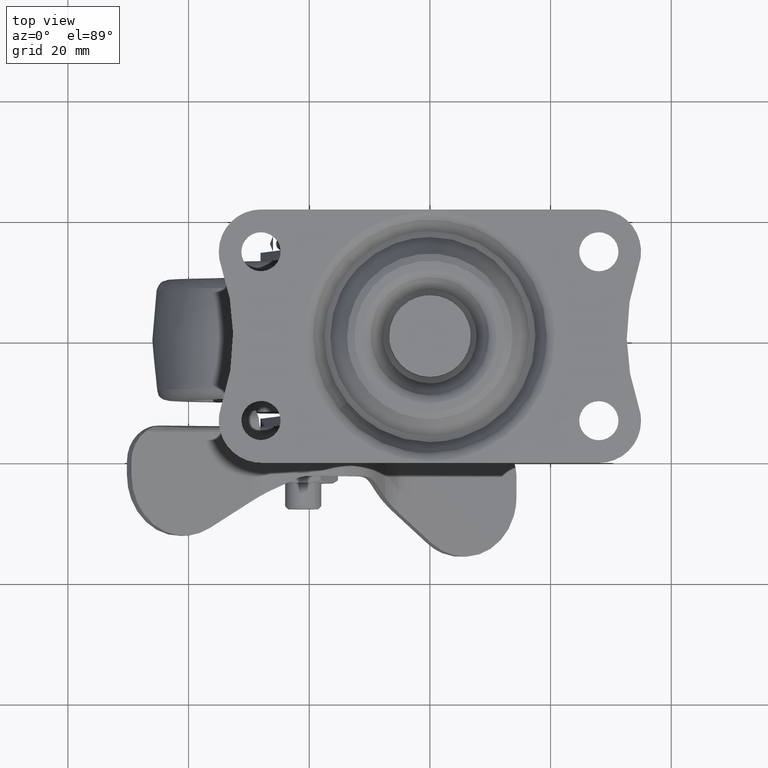
[diagram: clean part render]
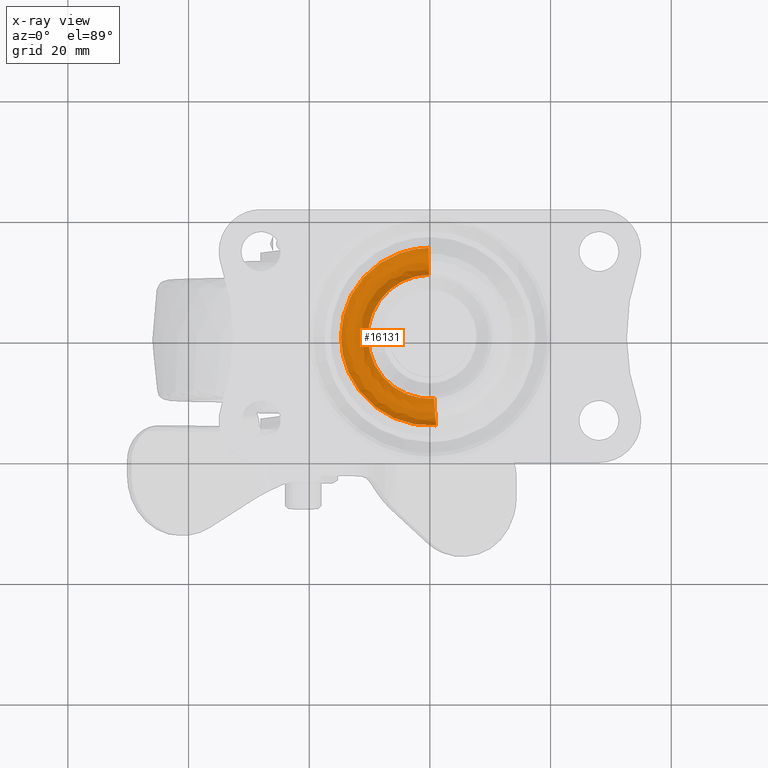
[diagram: x-ray — body ghosted, one internal face saturated and labeled with its STEP entity id]
A machine part, top view, then the same camera in x-ray: the body is ghosted and one INTERNAL B-rep face — a face not visible from any outside direction — is saturated and labeled: STEP entity #16131.
In plain terms, the highlighted face is a freeform B-spline surface patch.
Its self-contained STEP definition (entity closure, byte-faithful):
#15975=CARTESIAN_POINT('',(1.254466346812317,-14.787687954244289,-4.652776239736873));
#15976=CARTESIAN_POINT('',(1.144314758234576,-14.795387920818039,-4.652776239736872));
#15977=CARTESIAN_POINT('',(0.611126244214008,-14.832659591508182,-4.652776239736873));
#15978=CARTESIAN_POINT('',(0.186469575715161,-14.837996265502614,-4.652776239736872));
#15979=CARTESIAN_POINT('',(-14.651526689787447,-15.024465841217767,-4.652776239736872));
#15980=CARTESIAN_POINT('',(-14.837996265502614,-0.186469575715162,-4.652776239736872));
#15981=CARTESIAN_POINT('',(-15.024465841217767,14.651526689787447,-4.652776239736872));
#15982=CARTESIAN_POINT('',(-0.079756804454429,14.839337328327018,-4.652776239736872));
#15983=CARTESIAN_POINT('',(0.026322067867619,14.840670424923106,-4.652776239736872));
#15984=CARTESIAN_POINT('',(1.204622691708250,-14.200129411880141,-6.299998449999986));
#15985=CARTESIAN_POINT('',(1.098847751259958,-14.207523436027305,-6.299998449999987));
#15986=CARTESIAN_POINT('',(0.586844392557286,-14.243314193097278,-6.299998449999985));
#15987=CARTESIAN_POINT('',(0.179060588425095,-14.248438825263197,-6.299998449999985));
#15988=CARTESIAN_POINT('',(-14.069378236838102,-14.427499413688293,-6.299998449999985));
#15989=CARTESIAN_POINT('',(-14.248438825263197,-0.179060588425096,-6.299998449999985));
#15990=CARTESIAN_POINT('',(-14.427499413688293,14.069378236838102,-6.299998449999985));
#15991=CARTESIAN_POINT('',(-0.076587830919562,14.249726603698546,-6.299998449999987));
#15992=CARTESIAN_POINT('',(0.025276214325391,14.251006732427351,-6.299998449999986));
#15993=CARTESIAN_POINT('',(1.056718910170037,-12.456635077259264,-6.299998449999986));
#15994=CARTESIAN_POINT('',(0.963931035125682,-12.463121261848302,-6.299998449999986));
#15995=CARTESIAN_POINT('',(0.514791536977557,-12.494517623601629,-6.299998449999984));
#15996=CARTESIAN_POINT('',(0.157075498541910,-12.499013052547699,-6.299998449999984));
#15997=CARTESIAN_POINT('',(-12.341937554005787,-12.656088551089608,-6.299998449999984));
#15998=CARTESIAN_POINT('',(-12.499013052547699,-0.157075498541911,-6.299998449999984));
#15999=CARTESIAN_POINT('',(-12.656088551089608,12.341937554005787,-6.299998449999984));
#16000=CARTESIAN_POINT('',(-0.067184363849928,12.500142717324985,-6.299998449999986));
#16001=CARTESIAN_POINT('',(0.022172796377657,12.501265671628021,-6.299998449999987));
#16002=CARTESIAN_POINT('',(0.908815101572299,-10.713140423659885,-6.299998449999985));
#16003=CARTESIAN_POINT('',(0.829014294307911,-10.718718768524703,-6.299998449999986));
#16004=CARTESIAN_POINT('',(0.442738668215502,-10.745720734157418,-6.299998449999984));
#16005=CARTESIAN_POINT('',(0.135090404636476,-10.749586959768518,-6.299998449999984));
#16006=CARTESIAN_POINT('',(-10.614496555132041,-10.884677364404993,-6.299998449999986));
#16007=CARTESIAN_POINT('',(-10.749586959768518,-0.135090404636476,-6.299998449999984));
#16008=CARTESIAN_POINT('',(-10.884677364404995,10.614496555132041,-6.299998449999986));
#16009=CARTESIAN_POINT('',(-0.057780895059896,10.750558510858809,-6.299998449999984));
#16010=CARTESIAN_POINT('',(0.019069377862141,10.751524290707311,-6.299998449999984));
#16011=CARTESIAN_POINT('',(0.858971461335551,-10.125582056552167,-4.652775836811488));
#16012=CARTESIAN_POINT('',(0.783547300895151,-10.130854459081652,-4.652775836811488));
#16013=CARTESIAN_POINT('',(0.418456823801548,-10.156375511535927,-4.652775836811485));
#16014=CARTESIAN_POINT('',(0.127681419556355,-10.160029695381764,-4.652775836811486));
#16015=CARTESIAN_POINT('',(-10.032348275825409,-10.287711114938121,-4.652775836811485));
#16016=CARTESIAN_POINT('',(-10.160029695381764,-0.127681419556356,-4.652775836811486));
#16017=CARTESIAN_POINT('',(-10.287711114938121,10.032348275825408,-4.652775836811485));
#16018=CARTESIAN_POINT('',(-0.054611922470268,10.160947962098884,-4.652775836811486));
#16019=CARTESIAN_POINT('',(0.018023524631869,10.161860774095915,-4.652775836811486));
#16027=(BOUNDED_SURFACE()B_SPLINE_SURFACE(2,2,((#15975,#15984,#15993,#16002,#16011),(#15976,#15985,#15994,#16003,#16012),(#15977,#15986,#15995,#16004,#16013),(#15978,#15987,#15996,#16005,#16014),(#15979,#15988,#15997,#16006,#16015),(#15980,#15989,#15998,#16007,#16016),(#15981,#15990,#15999,#16008,#16017),(#15982,#15991,#16000,#16009,#16018),(#15983,#15992,#16001,#16010,#16019)),.UNSPECIFIED.,.F.,.F.,.U.)B_SPLINE_SURFACE_WITH_KNOTS((3,1,2,2,1,3),(3,2,3),(0.0,0.250781733737984,1.234234331858554,25.820572732232261,50.406911132605977,50.657721608783667),(0.0,3.147990039660571,6.295980542036234),.UNSPECIFIED.)GEOMETRIC_REPRESENTATION_ITEM()RATIONAL_B_SPLINE_SURFACE(((0.938528616179329,0.780925577206086,0.972008777248647,0.780925549119250,0.938528662510680),(0.941182467316013,0.783133778634372,0.974757299301038,0.783133750468115,0.941182513778375),(0.954243522982692,0.794001547884652,0.988284282420452,0.794001519327524,0.954243570089824),(0.965555700881543,0.803414120823643,1.0,0.803414091927982,0.965555748547112),(0.682750983706669,0.568099572935426,0.707106781186548,0.568099552503108,0.682751017411316),(0.965555700881543,0.803414120823643,1.0,0.803414091927982,0.965555748547112),(0.682750983706669,0.568099572935426,0.707106781186548,0.568099552503108,0.682751017411316),(0.968440652053404,0.805814614660760,1.002987866126446,0.805814585678763,0.968440699861391),(0.971325603225265,0.808215108497878,1.005975732252892,0.808215079429544,0.971325651175670)))REPRESENTATION_ITEM('')SURFACE());
#16028=CARTESIAN_POINT('',(-10.264692522078940,0.0,-4.899998799999991));
#16029=VERTEX_POINT('',#16028);
#16030=CARTESIAN_POINT('',(0.715790249355298,-10.239702987608419,-4.899994822422636));
#16031=VERTEX_POINT('',#16030);
#16032=CARTESIAN_POINT('',(-10.264692522078940,0.0,-4.899998799999991));
#16033=CARTESIAN_POINT('',(-10.264764459553311,-0.701668213624318,-4.899998673236914));
#16034=CARTESIAN_POINT('',(-10.111309381801920,-2.192724466481469,-4.899998374101704));
#16035=CARTESIAN_POINT('',(-9.443867505465473,-4.203890323261155,-4.899997881408207));
#16036=CARTESIAN_POINT('',(-8.361529806864683,-6.070352202730941,-4.899997334473521));
#16037=CARTESIAN_POINT('',(-7.104764043567214,-7.491220087471522,-4.899996834252947));
#16038=CARTESIAN_POINT('',(-5.611510191380226,-8.651971861778069,-4.899996335210314));
#16039=CARTESIAN_POINT('',(-4.293541924561294,-9.362008436023400,-4.899995951564512));
#16040=CARTESIAN_POINT('',(-2.810245907119176,-9.908794888345817,-4.899995565381968));
#16041=CARTESIAN_POINT('',(-1.217634604837215,-10.251898100725921,-4.899995194821301));
#16042=CARTESIAN_POINT('',(0.059583548785452,-10.285648584790360,-4.899994941261431));
#16043=CARTESIAN_POINT('',(0.715790249355298,-10.239702987608419,-4.899994822422636));
#16044=B_SPLINE_CURVE_WITH_KNOTS('',3,(#16032,#16033,#16034,#16035,#16036,#16037,#16038,#16039,#16040,#16041,#16042,#16043),.UNSPECIFIED.,.F.,.U.,(4,1,1,1,1,1,1,1,1,4),(0.000000077285470,2.105020683642975,4.473189182731669,6.315105143934741,8.551658459804285,10.130415157014911,11.972340766568649,13.024868409543011,14.866787317854390,16.840227094994209),.UNSPECIFIED.);
#16045=EDGE_CURVE('',#16029,#16031,#16044,.T.);
#16046=ORIENTED_EDGE('',*,*,#16045,.F.);
#16047=CARTESIAN_POINT('',(-0.128986511137416,10.263880135452430,-4.899994822370571));
#16048=VERTEX_POINT('',#16047);
#16049=CARTESIAN_POINT('',(-0.128986511137416,10.263880135452430,-4.899994822370571));
#16050=CARTESIAN_POINT('',(-1.170278961880329,10.251246656815670,-4.899995026602829));
#16051=CARTESIAN_POINT('',(-2.957475900534001,9.953389727071588,-4.899995431318069));
#16052=CARTESIAN_POINT('',(-5.132005703718651,8.965182780972979,-4.899996046529076));
#16053=CARTESIAN_POINT('',(-6.491670820165065,7.991807605723735,-4.899996500947593));
#16054=CARTESIAN_POINT('',(-7.584857034146079,6.962841358035505,-4.899996914642123));
#16055=CARTESIAN_POINT('',(-8.638616285918880,5.664471350138951,-4.899997373555547));
#16056=CARTESIAN_POINT('',(-9.579888184655799,3.886908578197405,-4.899997904693205));
#16057=CARTESIAN_POINT('',(-10.146444517209311,1.916011221338229,-4.899998401161585));
#16058=CARTESIAN_POINT('',(-10.264751998351560,0.624786978741892,-4.899998677426306));
#16059=CARTESIAN_POINT('',(-10.264692522078940,0.0,-4.899998799999991));
#16060=B_SPLINE_CURVE_WITH_KNOTS('',3,(#16049,#16050,#16051,#16052,#16053,#16054,#16055,#16056,#16057,#16058,#16059),.UNSPECIFIED.,.F.,.U.,(4,1,1,1,1,1,1,1,4),(0.000000090298995,3.123983173237352,5.373288687253954,7.122718820225469,8.122357970410032,9.871791818538391,12.121098220110831,14.120481603271219,15.994848920476990),.UNSPECIFIED.);
#16061=EDGE_CURVE('',#16048,#16029,#16060,.T.);
#16062=ORIENTED_EDGE('',*,*,#16061,.F.);
#16063=CARTESIAN_POINT('',(-0.185139326916579,14.734146031416220,-4.899995346601386));
#16064=VERTEX_POINT('',#16063);
#16065=CARTESIAN_POINT('',(-0.185139326916579,14.734146031416220,-4.899995346601386));
#16066=CARTESIAN_POINT('',(-0.183396109134275,14.595370319236920,-5.186808996460331));
#16067=CARTESIAN_POINT('',(-0.179052075354861,14.249546413806399,-5.646468693104300));
#16068=CARTESIAN_POINT('',(-0.170470411021972,13.566369250483801,-6.099800437616441));
#16069=CARTESIAN_POINT('',(-0.162360263678256,12.920729052779890,-6.291366233176120));
#16070=CARTESIAN_POINT('',(-0.154683551499559,12.309594167212280,-6.312687587570083));
#16071=CARTESIAN_POINT('',(-0.147483862640503,11.736434600378130,-6.206295125393909));
#16072=CARTESIAN_POINT('',(-0.139806222721994,11.125225858415840,-5.927251752629280));
#16073=CARTESIAN_POINT('',(-0.133282001224087,10.605839529227209,-5.474469038483633));
#16074=CARTESIAN_POINT('',(-0.130097666063765,10.352337996452000,-5.082389885048709));
#16075=CARTESIAN_POINT('',(-0.128986511137416,10.263880135452430,-4.899994822370571));
#16076=B_SPLINE_CURVE_WITH_KNOTS('',3,(#16065,#16066,#16067,#16068,#16069,#16070,#16071,#16072,#16073,#16074,#16075),.UNSPECIFIED.,.F.,.U.,(4,1,1,1,1,1,1,1,4),(0.000000429312260,0.955763174757180,1.694315181850457,2.432863782338903,2.954116779215959,3.518920164622878,4.170606925474724,4.952639554263558,5.560809107563340),.UNSPECIFIED.);
#16077=EDGE_CURVE('',#16064,#16048,#16076,.T.);
#16078=ORIENTED_EDGE('',*,*,#16077,.F.);
#16079=CARTESIAN_POINT('',(-14.735307477921060,0.0,-4.899998799999991));
#16080=VERTEX_POINT('',#16079);
#16081=CARTESIAN_POINT('',(-14.735307477921060,0.0,-4.899998799999991));
#16082=CARTESIAN_POINT('',(-14.735543321855150,1.136103055505159,-4.899998665214522));
#16083=CARTESIAN_POINT('',(-14.471244696584071,3.408208147862216,-4.899998364629489));
#16084=CARTESIAN_POINT('',(-13.488908124046320,6.125429247226488,-4.899997927085323));
#16085=CARTESIAN_POINT('',(-12.260866893828620,8.252558954467776,-4.899997530771075));
#16086=CARTESIAN_POINT('',(-11.088609306459279,9.771269631871341,-4.899997213190294));
#16087=CARTESIAN_POINT('',(-9.639917050260950,11.202946838838010,-4.899996873544197));
#16088=CARTESIAN_POINT('',(-7.772377364907362,12.609921340756150,-4.899996487748455));
#16089=CARTESIAN_POINT('',(-5.627510279227006,13.696925184850890,-4.899996107423745));
#16090=CARTESIAN_POINT('',(-2.992767165136628,14.507958829076980,-4.899995702442235));
#16091=CARTESIAN_POINT('',(-1.261370104988207,14.720824598530280,-4.899995474296047));
#16092=CARTESIAN_POINT('',(-0.185139326916579,14.734146031416220,-4.899995346601386));
#16093=B_SPLINE_CURVE_WITH_KNOTS('',3,(#16081,#16082,#16083,#16084,#16085,#16086,#16087,#16088,#16089,#16090,#16091,#16092),.UNSPECIFIED.,.F.,.U.,(4,1,1,1,1,1,1,1,1,4),(0.000000025413112,3.408282053897342,6.816606000828873,8.610461074764809,10.763066632750750,12.556870271923840,14.709484933464500,17.759027210500030,19.732263359426760,22.961165513358171),.UNSPECIFIED.);
#16094=EDGE_CURVE('',#16080,#16064,#16093,.T.);
#16095=ORIENTED_EDGE('',*,*,#16094,.F.);
#16096=CARTESIAN_POINT('',(1.027540903562693,-14.699436933436820,-4.899998800020643));
#16097=VERTEX_POINT('',#16096);
#16098=CARTESIAN_POINT('',(1.027540903562693,-14.699436933436820,-4.899998800020643));
#16099=CARTESIAN_POINT('',(0.399542938587513,-14.743347949151460,-4.899998800019211));
#16100=CARTESIAN_POINT('',(-1.019818567549266,-14.751447155497999,-4.899998800016031));
#16101=CARTESIAN_POINT('',(-3.365551972276142,-14.424622708558511,-4.899998800011181));
#16102=CARTESIAN_POINT('',(-5.650839028567641,-13.680606241127069,-4.899998800006782));
#16103=CARTESIAN_POINT('',(-7.751629690437907,-12.591815137077750,-4.899998800003225));
#16104=CARTESIAN_POINT('',(-9.547264766303581,-11.303604089017030,-4.899998800000441));
#16105=CARTESIAN_POINT('',(-11.052317747633920,-9.816605635608807,-4.899998799998591));
#16106=CARTESIAN_POINT('',(-12.452034738994710,-7.989456202969178,-4.899998799997292));
#16107=CARTESIAN_POINT('',(-13.588818270625090,-5.907933032731727,-4.899998799996652));
#16108=CARTESIAN_POINT('',(-14.505384830531341,-3.116162867972832,-4.899998799997566));
#16109=CARTESIAN_POINT('',(-14.735547671957841,-1.133198550148187,-4.899998799998827));
#16110=CARTESIAN_POINT('',(-14.735307477921060,0.0,-4.899998799999991));
#16111=B_SPLINE_CURVE_WITH_KNOTS('',3,(#16098,#16099,#16100,#16101,#16102,#16103,#16104,#16105,#16106,#16107,#16108,#16109,#16110),.UNSPECIFIED.,.F.,.U.,(4,1,1,1,1,1,1,1,1,1,4),(0.000000094225310,1.888600628553828,4.249422294053922,7.082398933627168,9.065472279104050,11.331877115820721,13.692625929121601,15.392384391936931,18.225369899779899,20.775034342830661,24.174583734155330),.UNSPECIFIED.);
#16112=EDGE_CURVE('',#16097,#16080,#16111,.T.);
#16113=ORIENTED_EDGE('',*,*,#16112,.F.);
#16114=CARTESIAN_POINT('',(1.027540903562693,-14.699436933436820,-4.899998800020643));
#16115=CARTESIAN_POINT('',(1.020493888487974,-14.598626197182011,-5.108493986019944));
#16116=CARTESIAN_POINT('',(1.005130639658712,-14.378847978942041,-5.436107637283479));
#16117=CARTESIAN_POINT('',(0.970771787029278,-13.887329065610320,-5.889034999431057));
#16118=CARTESIAN_POINT('',(0.933558239291781,-13.354972450811680,-6.167481463782836));
#16119=CARTESIAN_POINT('',(0.894929066706000,-12.802364684547120,-6.290321549404165));
#16120=CARTESIAN_POINT('',(0.861535731278702,-12.324657935184071,-6.311287597983285));
#16121=CARTESIAN_POINT('',(0.820320555140125,-11.735056221892760,-6.222979392123914));
#16122=CARTESIAN_POINT('',(0.780278098085488,-11.162230786582761,-5.960691957837761));
#16123=CARTESIAN_POINT('',(0.741961055325815,-10.614088184110029,-5.506453984977139));
#16124=CARTESIAN_POINT('',(0.724155356149760,-10.359369616936551,-5.147622575141075));
#16125=CARTESIAN_POINT('',(0.715790249355298,-10.239702987608419,-4.899994822422636));
#16126=B_SPLINE_CURVE_WITH_KNOTS('',3,(#16114,#16115,#16116,#16117,#16118,#16119,#16120,#16121,#16122,#16123,#16124,#16125),.UNSPECIFIED.,.F.,.U.,(4,1,1,1,1,1,1,1,1,4),(0.000000429305405,0.695064314225530,1.172979065722215,1.998421213360134,2.476348107375229,2.867241370319941,3.432044647186381,4.257494927803458,4.735405345790423,5.560805268948183),.UNSPECIFIED.);
#16127=EDGE_CURVE('',#16097,#16031,#16126,.T.);
#16128=ORIENTED_EDGE('',*,*,#16127,.T.);
#16129=EDGE_LOOP('',(#16046,#16062,#16078,#16095,#16113,#16128));
#16130=FACE_OUTER_BOUND('',#16129,.T.);
#16131=ADVANCED_FACE('',(#16130),#16027,.F.);